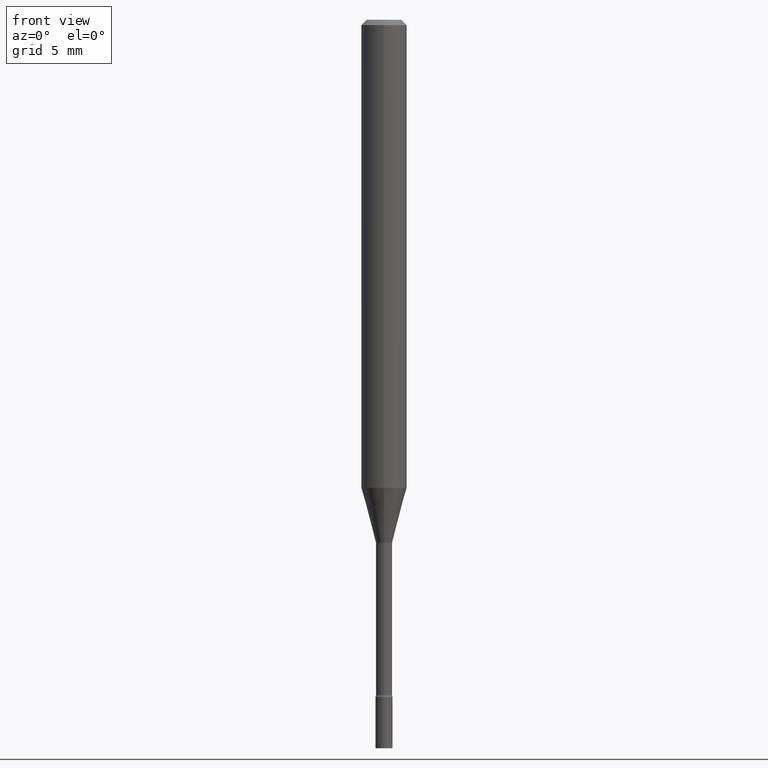
[diagram: clean part render]
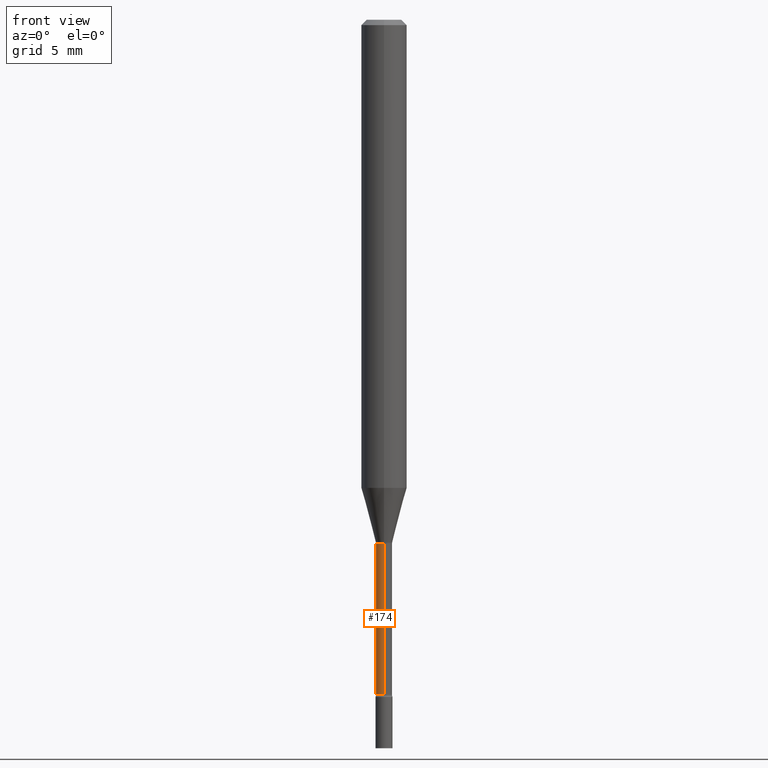
[diagram: same view with one face highlighted and labeled with its STEP entity id]
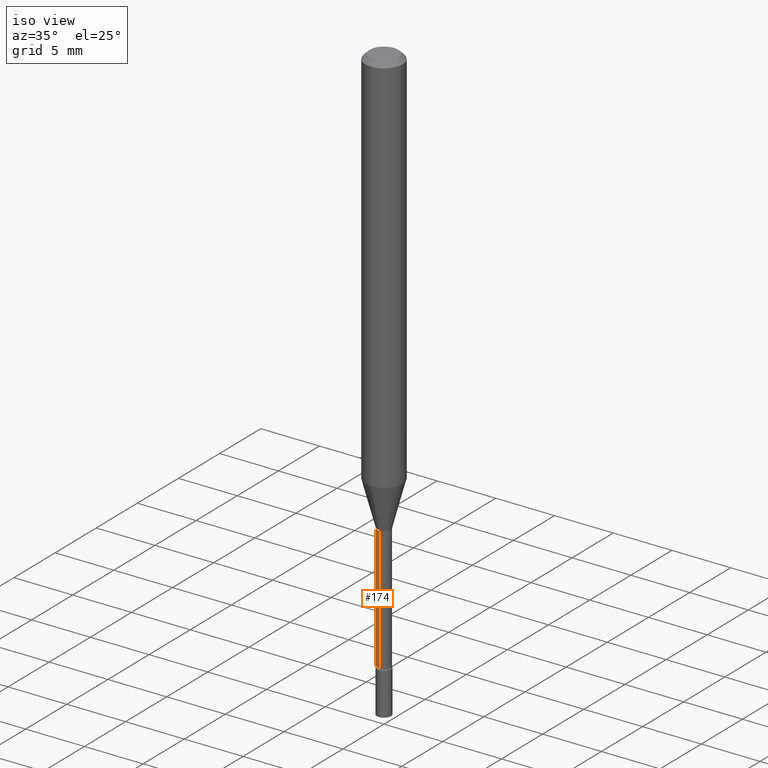
[diagram: same view with one face highlighted and labeled with its STEP entity id]
A machine part, front view. The second image highlights one B-rep face of the part: STEP entity #174.
A second angle (iso view) of the same face is appended — the face is thin or edge-on in the first view.
In plain terms, the highlighted cylindrical surface (edge-blend (fillet) strip) has radius 0.5613 mm, axis along (-0, 0, 1).
Its self-contained STEP definition (entity closure, byte-faithful):
#8 = CYLINDRICAL_SURFACE ( 'NONE', #52, 0.02210000000000003281 ) ;
#19 = CARTESIAN_POINT ( 'NONE',  ( 3.516494428602184919E-29, -5.020702317126664173E-15, -1.437974787463811133 ) ) ;
#35 = VERTEX_POINT ( 'NONE', #280 ) ;
#39 = AXIS2_PLACEMENT_3D ( 'NONE', #19, #370, #303 ) ;
#42 = EDGE_CURVE ( 'NONE', #75, #112, #157, .T. ) ;
#44 = CARTESIAN_POINT ( 'NONE',  ( 1.570299446030275858E-16, 0.02209999999999498130, -1.437974787463811133 ) ) ;
#52 = AXIS2_PLACEMENT_3D ( 'NONE', #206, #324, #369 ) ;
#70 = ORIENTED_EDGE ( 'NONE', *, *, #42, .F. ) ;
#75 = VERTEX_POINT ( 'NONE', #401 ) ;
#100 = ORIENTED_EDGE ( 'NONE', *, *, #440, .T. ) ;
#101 = LINE ( 'NONE', #172, #104 ) ;
#104 = VECTOR ( 'NONE', #128, 39.37007874015748143 ) ;
#110 = AXIS2_PLACEMENT_3D ( 'NONE', #362, #246, #493 ) ;
#112 = VERTEX_POINT ( 'NONE', #44 ) ;
#123 = EDGE_CURVE ( 'NONE', #75, #35, #152, .T. ) ;
#128 = DIRECTION ( 'NONE',  ( -2.445449293867179508E-29, 3.491509281593031965E-15, 1.000000000000000000 ) ) ;
#148 = CARTESIAN_POINT ( 'NONE',  ( 1.570299446029823249E-16, 0.02210000000000003281, -7.716235512320612093E-17 ) ) ;
#152 = CIRCLE ( 'NONE', #110, 0.02210000000000006057 ) ;
#157 = LINE ( 'NONE', #148, #445 ) ;
#172 = CARTESIAN_POINT ( 'NONE',  ( -1.543234751768666840E-16, -0.02210000000000003281, 7.716235512320612093E-17 ) ) ;
#174 = ADVANCED_FACE ( 'NONE', ( #448 ), #8, .T. ) ;
#206 = CARTESIAN_POINT ( 'NONE',  ( 0.000000000000000000, 0.000000000000000000, 0.000000000000000000 ) ) ;
#216 = CARTESIAN_POINT ( 'NONE',  ( -1.543234751768313332E-16, -0.02210000000000502188, -1.437974787463811133 ) ) ;
#228 = DIRECTION ( 'NONE',  ( -2.445449293867179508E-29, 3.491509281593031965E-15, 1.000000000000000000 ) ) ;
#230 = ORIENTED_EDGE ( 'NONE', *, *, #431, .F. ) ;
#246 = DIRECTION ( 'NONE',  ( -2.445449293867179788E-29, 3.491509281593031965E-15, 1.000000000000000000 ) ) ;
#280 = CARTESIAN_POINT ( 'NONE',  ( -1.543234751768215957E-16, -0.02210000000000652762, -1.852672283192177582 ) ) ;
#303 = DIRECTION ( 'NONE',  ( -6.982962677686265922E-15, -1.000000000000000000, 0.000000000000000000 ) ) ;
#318 = EDGE_LOOP ( 'NONE', ( #70, #519, #100, #230 ) ) ;
#324 = DIRECTION ( 'NONE',  ( -2.445449293867179788E-29, 3.491509281593031965E-15, 1.000000000000000000 ) ) ;
#328 = CIRCLE ( 'NONE', #39, 0.02210000000000000159 ) ;
#343 = VERTEX_POINT ( 'NONE', #216 ) ;
#362 = CARTESIAN_POINT ( 'NONE',  ( 4.530616126699606657E-29, -6.468622472515642058E-15, -1.852672283192177582 ) ) ;
#369 = DIRECTION ( 'NONE',  ( -6.982962677686265133E-15, -1.000000000000000000, 3.491509281593031965E-15 ) ) ;
#370 = DIRECTION ( 'NONE',  ( -2.445449293867179788E-29, 3.491509281593031965E-15, 1.000000000000000000 ) ) ;
#401 = CARTESIAN_POINT ( 'NONE',  ( 1.620037437533484049E-16, 0.02209999999999359352, -1.852672283192177582 ) ) ;
#431 = EDGE_CURVE ( 'NONE', #112, #343, #328, .T. ) ;
#440 = EDGE_CURVE ( 'NONE', #35, #343, #101, .T. ) ;
#445 = VECTOR ( 'NONE', #228, 39.37007874015748143 ) ;
#448 = FACE_OUTER_BOUND ( 'NONE', #318, .T. ) ;
#493 = DIRECTION ( 'NONE',  ( -6.982962677686265922E-15, -1.000000000000000000, 0.000000000000000000 ) ) ;
#519 = ORIENTED_EDGE ( 'NONE', *, *, #123, .T. ) ;